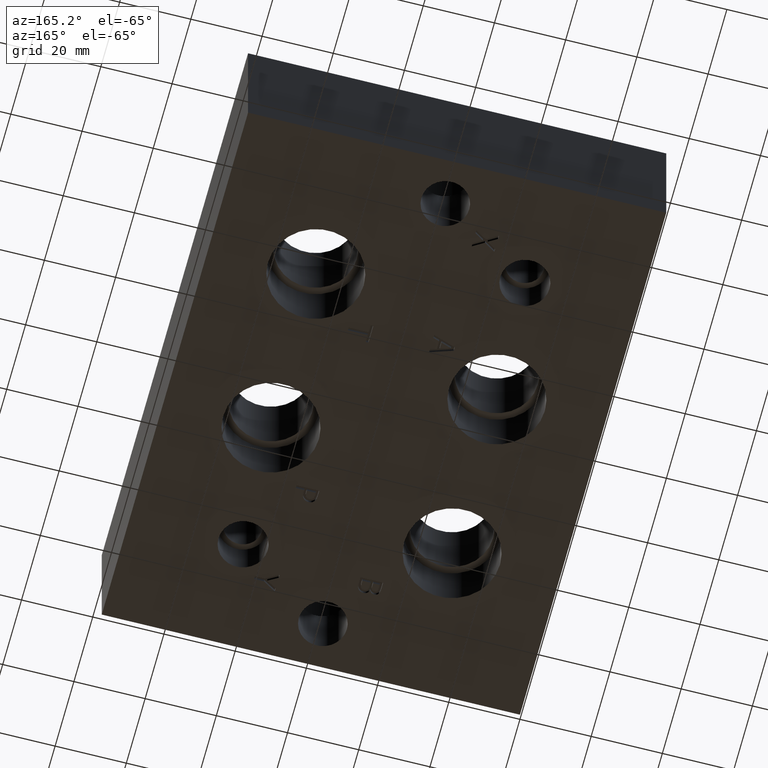
[diagram: clean part render]
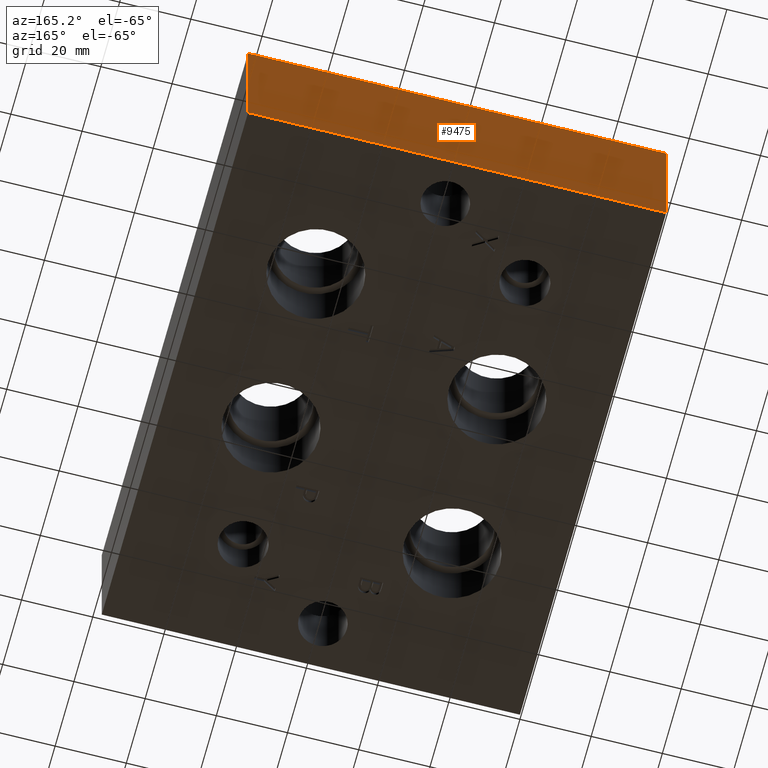
[diagram: same view with one face highlighted and labeled with its STEP entity id]
A machine part, auxiliary view. The second image highlights one B-rep face of the part: STEP entity #9475.
In plain terms, the highlighted planar face has unit normal (0, 1, 0).
Its self-contained STEP definition (entity closure, byte-faithful):
#542=PLANE('',#9944);
#1020=FACE_OUTER_BOUND('',#1560,.T.);
#1560=EDGE_LOOP('',(#8419,#8420,#8421,#8422));
#2320=LINE('',#15332,#3256);
#2513=LINE('',#16091,#3449);
#2514=LINE('',#16094,#3450);
#2515=LINE('',#16095,#3451);
#3256=VECTOR('',#11164,10.);
#3449=VECTOR('',#11783,10.);
#3450=VECTOR('',#11786,10.);
#3451=VECTOR('',#11787,10.);
#4359=VERTEX_POINT('',#15329);
#4360=VERTEX_POINT('',#15331);
#4585=VERTEX_POINT('',#16089);
#4586=VERTEX_POINT('',#16093);
#5564=EDGE_CURVE('',#4360,#4359,#2320,.T.);
#5877=EDGE_CURVE('',#4359,#4585,#2513,.T.);
#5878=EDGE_CURVE('',#4586,#4585,#2514,.T.);
#5879=EDGE_CURVE('',#4360,#4586,#2515,.T.);
#8419=ORIENTED_EDGE('',*,*,#5564,.T.);
#8420=ORIENTED_EDGE('',*,*,#5877,.T.);
#8421=ORIENTED_EDGE('',*,*,#5878,.F.);
#8422=ORIENTED_EDGE('',*,*,#5879,.F.);
#9475=ADVANCED_FACE('',(#1020),#542,.T.);
#9944=AXIS2_PLACEMENT_3D('',#16092,#11784,#11785);
#11164=DIRECTION('',(-1.,0.,0.));
#11783=DIRECTION('',(0.,0.,1.));
#11784=DIRECTION('center_axis',(0.,1.,0.));
#11785=DIRECTION('ref_axis',(-1.,0.,0.));
#11786=DIRECTION('',(-1.,0.,0.));
#11787=DIRECTION('',(0.,0.,1.));
#15329=CARTESIAN_POINT('',(0.,155.575,0.));
#15331=CARTESIAN_POINT('',(117.475,155.575,0.));
#15332=CARTESIAN_POINT('',(117.475,155.575,0.));
#16089=CARTESIAN_POINT('',(0.,155.575,38.1));
#16091=CARTESIAN_POINT('',(0.,155.575,0.));
#16092=CARTESIAN_POINT('Origin',(117.475,155.575,0.));
#16093=CARTESIAN_POINT('',(117.475,155.575,38.1));
#16094=CARTESIAN_POINT('',(117.475,155.575,38.1));
#16095=CARTESIAN_POINT('',(117.475,155.575,0.));